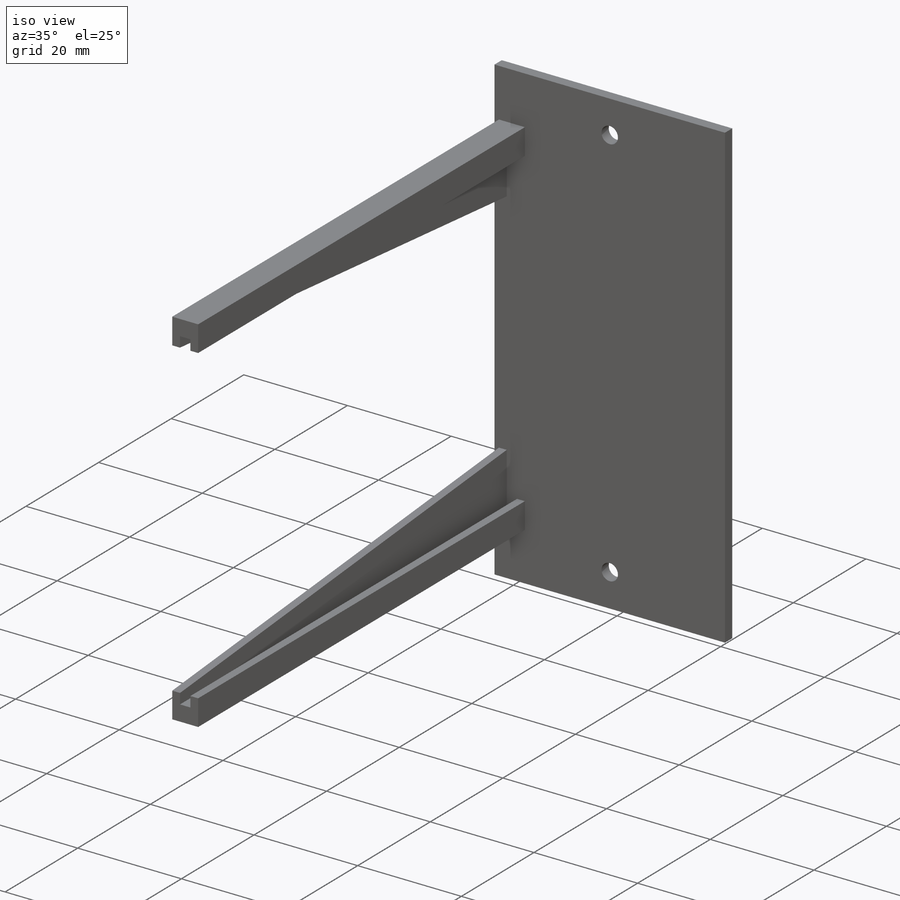
[diagram: iso view]
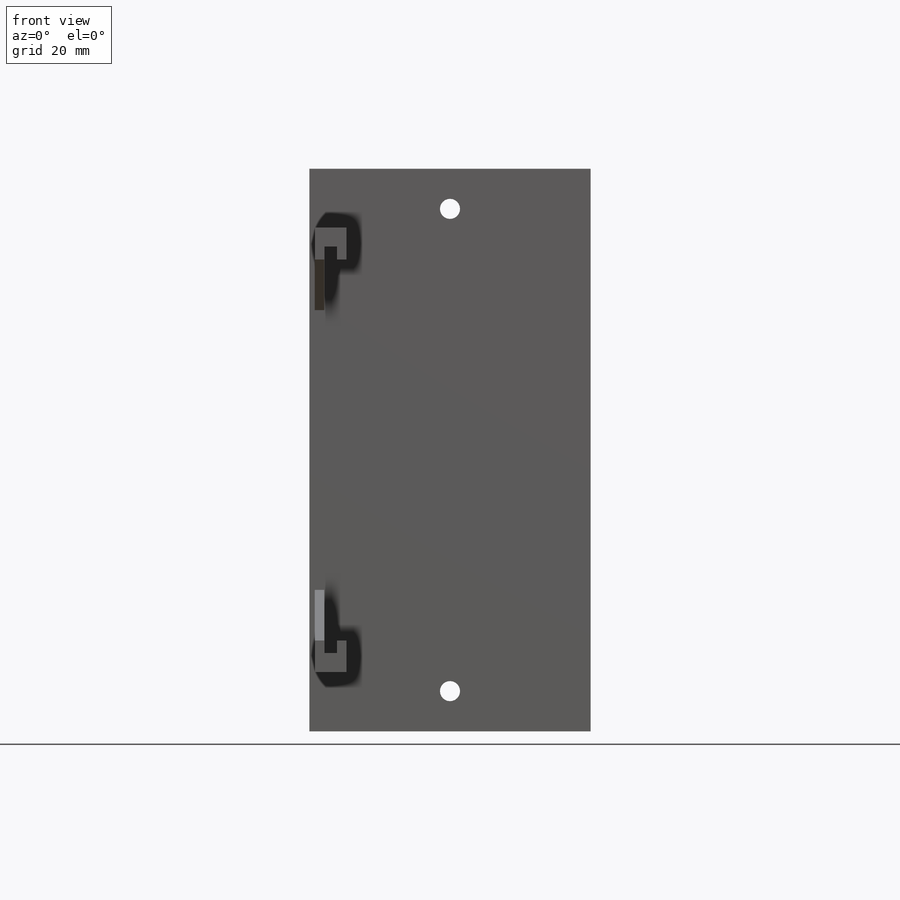
[diagram: front view]
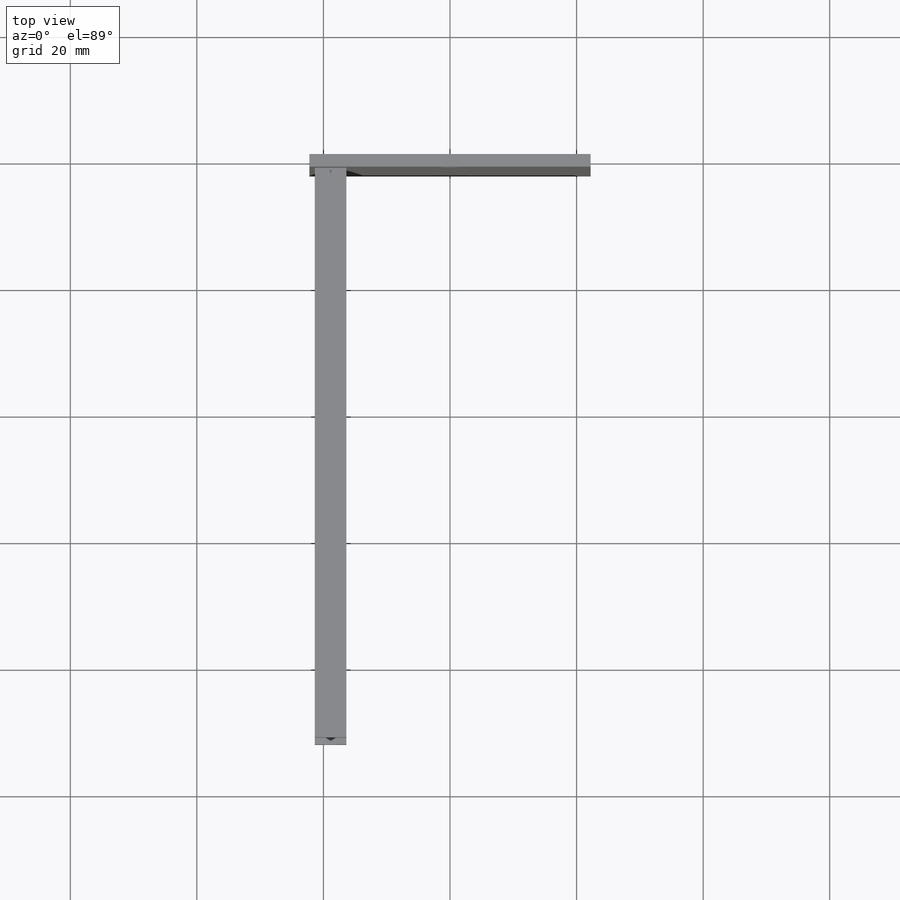
[diagram: top view]
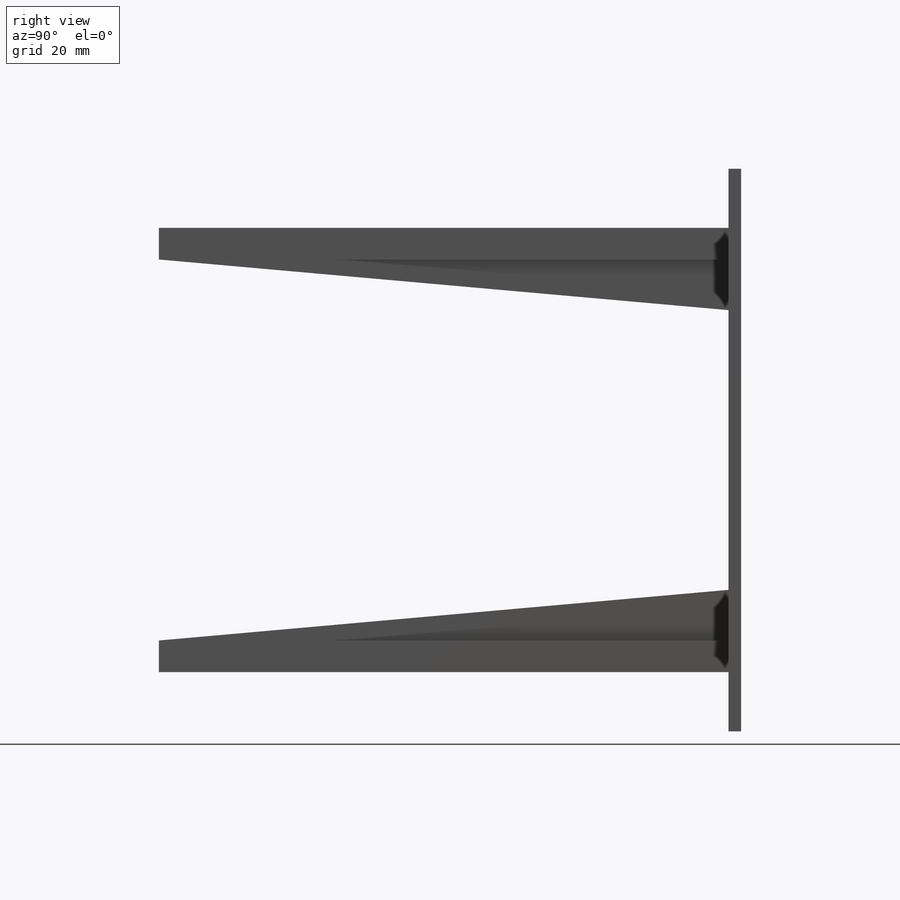
[diagram: right view]
SOLIDWORKS PART (.sldprt)
format: sldprt  version: not decoded by parser v0  size: 421,888 bytes
history: native  units: mm
features: sketch x4, extrude x3, plane x3, material x1, cut_extrude x1, mirror x1 (+12 scaffold rows collapsed)
feature tree (25):
  scaffold x12  (default folders/planes/origin — collapsed)
  material  "Material <not specified>"
  sketch  "Front Face"  dims[c1.D1=3.175mm c1.D2=8.0mm c1.D3=76.2mm c1.D4=3.0mm c2.D2=88.9mm c2.D5=44.45mm]
  extrude  "Boss-Extrude1"  Depth=2mm
  plane  "Plane-FaceRear"
  sketch  "Channel"  dims[c1.D1=0.5mm c1.D2=2.0mm c1.D3=2.0mm c1.D4=5.5mm c2.D1=3.0mm]
  plane  "Plane-CantiArm"
  sketch  "CantiArm"  dims[D1=90.0mm D2=5.0mm D3=0.0mm]
  extrude  "Boss-Extrude2"  Depth=2.5mm
  cut_extrude  "Cut-Extrude1"  [1 undecoded]
  sketch  "Sketch5"  dims[D1=8.0mm]
  plane  "Plane3"
  extrude  "Boss-Extrude5"  [1 undecoded]
  mirror  "Mirror1"
decode coverage: 6 of 9 modeling features carry decoded parameters
note: 2 parameter values undecoded
note: suppression state not decoded; provenance and decode notes live in map.json
